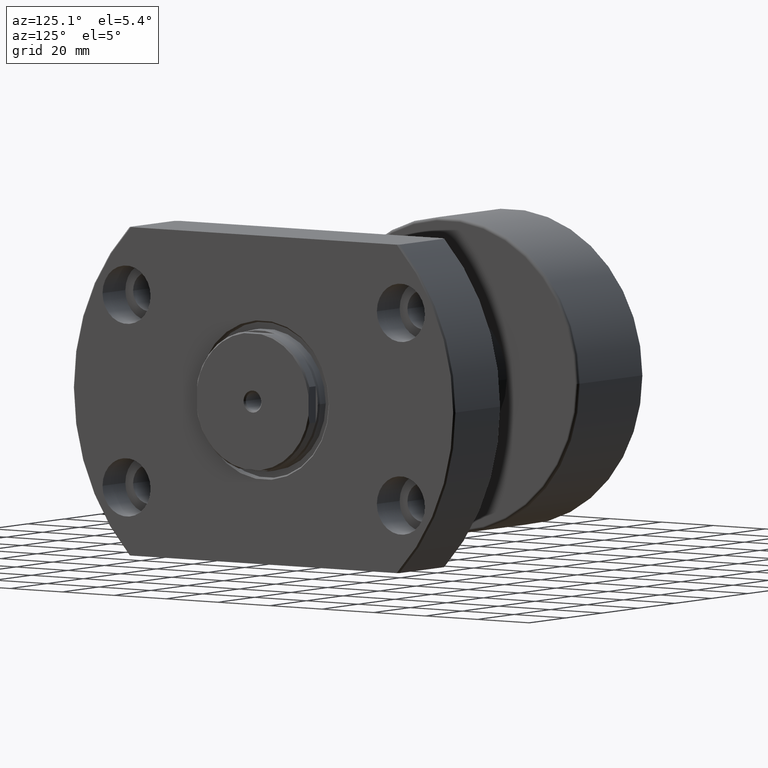
[diagram: clean part render]
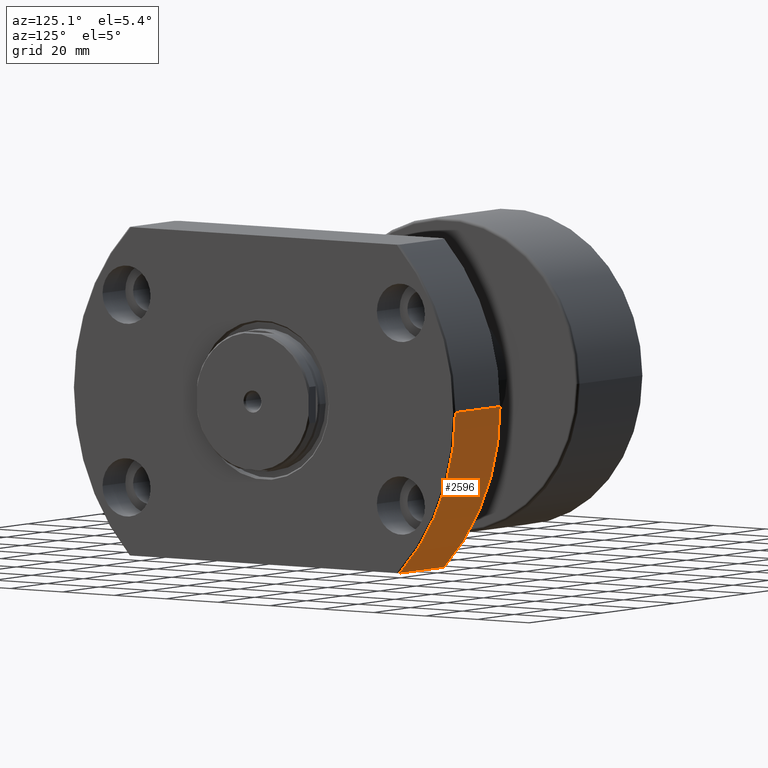
[diagram: same view with one face highlighted and labeled with its STEP entity id]
A machine part, auxiliary view. The second image highlights one B-rep face of the part: STEP entity #2596.
In plain terms, the highlighted cylindrical surface (partial cylindrical patch) has radius 73.5 mm, axis along (1, 0, 0).
Its self-contained STEP definition (entity closure, byte-faithful):
#83 = LINE ( 'NONE', #825, #3061 ) ;
#182 = DIRECTION ( 'NONE',  ( -9.440671978105083104E-17, 1.000000000000000000, 0.000000000000000000 ) ) ;
#333 = DIRECTION ( 'NONE',  ( 1.000000000000000000, 5.504030557965630938E-17, -0.000000000000000000 ) ) ;
#355 = DIRECTION ( 'NONE',  ( -4.720335989052541552E-17, 1.000000000000000000, 0.000000000000000000 ) ) ;
#604 = EDGE_LOOP ( 'NONE', ( #2610, #953, #1524, #2843 ) ) ;
#620 = EDGE_CURVE ( 'NONE', #1054, #2214, #3051, .T. ) ;
#652 = AXIS2_PLACEMENT_3D ( 'NONE', #2566, #333, #355 ) ;
#813 = DIRECTION ( 'NONE',  ( -9.440671978105083104E-17, 1.000000000000000000, 0.000000000000000000 ) ) ;
#825 = CARTESIAN_POINT ( 'NONE',  ( -6.175615574477433256E-13, 51.94468211472779018, -52.00000000000000711 ) ) ;
#953 = ORIENTED_EDGE ( 'NONE', *, *, #1824, .T. ) ;
#958 = CARTESIAN_POINT ( 'NONE',  ( 44.00000000000007816, 51.94468211472651831, -52.00000000000000711 ) ) ;
#1054 = VERTEX_POINT ( 'NONE', #1991 ) ;
#1060 = CARTESIAN_POINT ( 'NONE',  ( 44.00000000000007816, 73.49999999999991473, 0.000000000000000000 ) ) ;
#1090 = CARTESIAN_POINT ( 'NONE',  ( 44.00000000000008527, 2.421773445504882888E-15, 0.000000000000000000 ) ) ;
#1115 = EDGE_CURVE ( 'NONE', #1054, #1614, #83, .T. ) ;
#1120 = DIRECTION ( 'NONE',  ( 1.000000000000000000, 5.504030557965630938E-17, -0.000000000000000000 ) ) ;
#1193 = DIRECTION ( 'NONE',  ( 1.000000000000000000, 5.504030557965630938E-17, -0.000000000000000000 ) ) ;
#1396 = FACE_OUTER_BOUND ( 'NONE', #604, .T. ) ;
#1524 = ORIENTED_EDGE ( 'NONE', *, *, #1880, .F. ) ;
#1614 = VERTEX_POINT ( 'NONE', #958 ) ;
#1638 = AXIS2_PLACEMENT_3D ( 'NONE', #1090, #1798, #813 ) ;
#1798 = DIRECTION ( 'NONE',  ( 1.000000000000000000, 5.504030557965630938E-17, -0.000000000000000000 ) ) ;
#1824 = EDGE_CURVE ( 'NONE', #2214, #2409, #2505, .T. ) ;
#1846 = CIRCLE ( 'NONE', #1638, 73.49999999999991473 ) ;
#1880 = EDGE_CURVE ( 'NONE', #1614, #2409, #1846, .T. ) ;
#1991 = CARTESIAN_POINT ( 'NONE',  ( 19.49999999999999289, 51.94468211472722885, -52.00000000000000711 ) ) ;
#2214 = VERTEX_POINT ( 'NONE', #2362 ) ;
#2277 = AXIS2_PLACEMENT_3D ( 'NONE', #2923, #1193, #182 ) ;
#2362 = CARTESIAN_POINT ( 'NONE',  ( 19.49999999999999289, 73.49999999999991473, 0.000000000000000000 ) ) ;
#2402 = CYLINDRICAL_SURFACE ( 'NONE', #2277, 73.49999999999991473 ) ;
#2409 = VERTEX_POINT ( 'NONE', #1060 ) ;
#2505 = LINE ( 'NONE', #2598, #3067 ) ;
#2566 = CARTESIAN_POINT ( 'NONE',  ( 19.49999999999999645, 1.073285958803297879E-15, 0.000000000000000000 ) ) ;
#2596 = ADVANCED_FACE ( 'NONE', ( #1396 ), #2402, .T. ) ;
#2598 = CARTESIAN_POINT ( 'NONE',  ( 44.49999999999999289, 73.49999999999991473, 0.000000000000000000 ) ) ;
#2610 = ORIENTED_EDGE ( 'NONE', *, *, #620, .T. ) ;
#2843 = ORIENTED_EDGE ( 'NONE', *, *, #1115, .F. ) ;
#2923 = CARTESIAN_POINT ( 'NONE',  ( 44.50000000000000000, 2.449293598294705724E-15, 0.000000000000000000 ) ) ;
#3051 = CIRCLE ( 'NONE', #652, 73.49999999999991473 ) ;
#3061 = VECTOR ( 'NONE', #3084, 1000.000000000000000 ) ;
#3067 = VECTOR ( 'NONE', #1120, 1000.000000000000000 ) ;
#3084 = DIRECTION ( 'NONE',  ( 1.000000000000000000, -2.886466111666351885E-14, -0.000000000000000000 ) ) ;